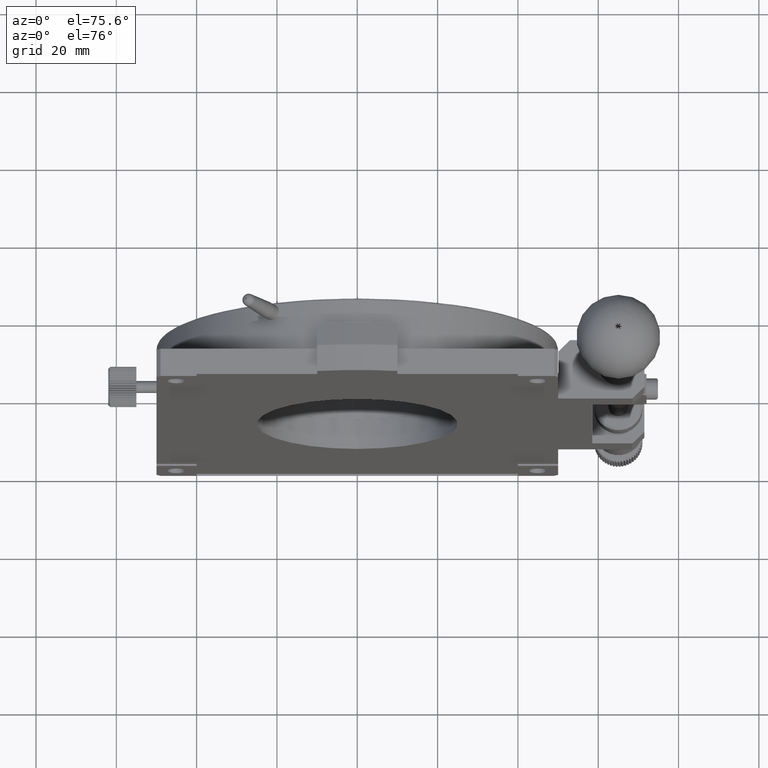
[diagram: clean part render]
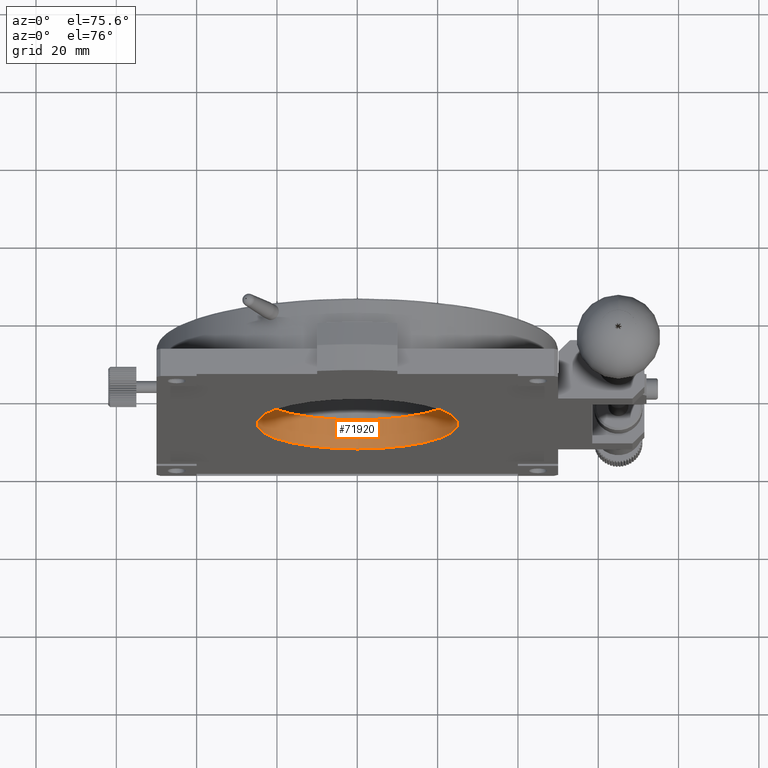
[diagram: same view with one face highlighted and labeled with its STEP entity id]
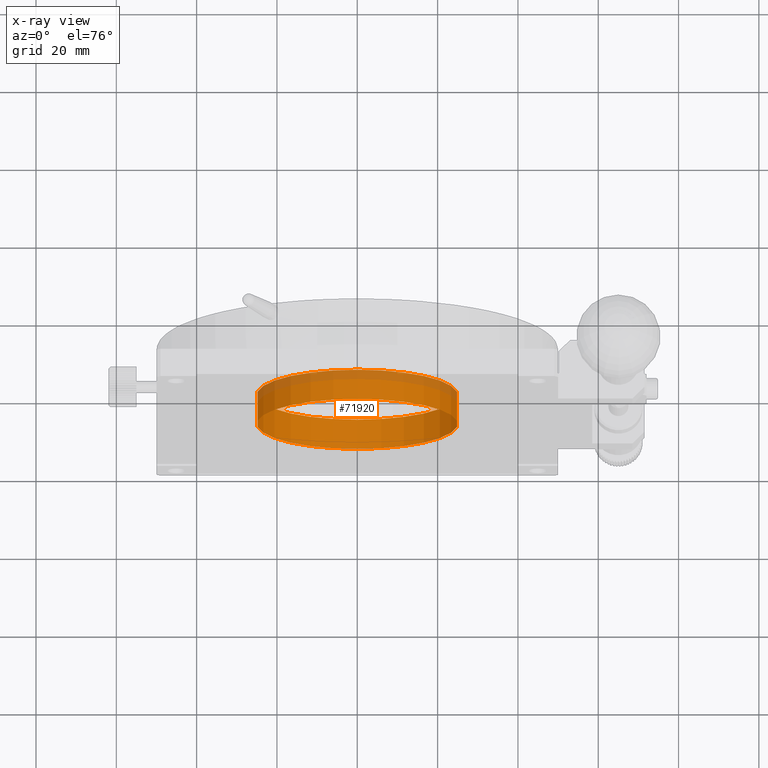
[diagram: x-ray of the same camera — body ghosted, the highlighted face saturated]
A machine part, auxiliary view. The second image highlights one B-rep face of the part: STEP entity #71920.
The next image is the same camera in x-ray: the body ghosted, the highlighted face saturated — about 17% of this face is hidden behind the body in this view.
In plain terms, the highlighted cylindrical surface (bore or boss wall) has radius 25 mm, axis along (0, -1, 0).
Its self-contained STEP definition (entity closure, byte-faithful):
#1 = AXIS2_PLACEMENT_3D ( 'NONE', #41757, #72481, #5682 ) ;
#5390 = AXIS2_PLACEMENT_3D ( 'NONE', #77266, #61226, #54854 ) ;
#5682 = DIRECTION ( 'NONE',  ( 0.000000000000000000, 0.000000000000000000, -1.000000000000000000 ) ) ;
#6869 = ORIENTED_EDGE ( 'NONE', *, *, #8420, .F. ) ;
#8420 = EDGE_CURVE ( 'NONE', #51460, #51460, #31158, .T. ) ;
#12080 = EDGE_CURVE ( 'NONE', #43632, #43632, #90480, .T. ) ;
#25566 = CYLINDRICAL_SURFACE ( 'NONE', #5390, 25.00000000000000000 ) ;
#25711 = DIRECTION ( 'NONE',  ( 0.000000000000000000, 0.000000000000000000, -1.000000000000000000 ) ) ;
#29489 = CARTESIAN_POINT ( 'NONE',  ( 0.000000000000000000, 0.5000000000000004441, -25.00000000000000000 ) ) ;
#31158 = CIRCLE ( 'NONE', #1, 25.00000000000000000 ) ;
#34320 = AXIS2_PLACEMENT_3D ( 'NONE', #62332, #39885, #25711 ) ;
#39885 = DIRECTION ( 'NONE',  ( 0.000000000000000000, -1.000000000000000000, 0.000000000000000000 ) ) ;
#40677 = FACE_OUTER_BOUND ( 'NONE', #54553, .T. ) ;
#41757 = CARTESIAN_POINT ( 'NONE',  ( 0.000000000000000000, 8.000000000000000000, 0.000000000000000000 ) ) ;
#43141 = CARTESIAN_POINT ( 'NONE',  ( 0.000000000000000000, 8.000000000000000000, -25.00000000000000000 ) ) ;
#43632 = VERTEX_POINT ( 'NONE', #29489 ) ;
#47545 = FACE_OUTER_BOUND ( 'NONE', #96219, .T. ) ;
#51460 = VERTEX_POINT ( 'NONE', #43141 ) ;
#54553 = EDGE_LOOP ( 'NONE', ( #86905 ) ) ;
#54854 = DIRECTION ( 'NONE',  ( 0.000000000000000000, 0.000000000000000000, -1.000000000000000000 ) ) ;
#61226 = DIRECTION ( 'NONE',  ( 0.000000000000000000, -1.000000000000000000, 0.000000000000000000 ) ) ;
#62332 = CARTESIAN_POINT ( 'NONE',  ( 0.000000000000000000, 0.5000000000000004441, 0.000000000000000000 ) ) ;
#71920 = ADVANCED_FACE ( 'NONE', ( #47545, #40677 ), #25566, .F. ) ;
#72481 = DIRECTION ( 'NONE',  ( 0.000000000000000000, -1.000000000000000000, 0.000000000000000000 ) ) ;
#77266 = CARTESIAN_POINT ( 'NONE',  ( 0.000000000000000000, 20.00000000000000000, 0.000000000000000000 ) ) ;
#86905 = ORIENTED_EDGE ( 'NONE', *, *, #12080, .T. ) ;
#90480 = CIRCLE ( 'NONE', #34320, 25.00000000000000000 ) ;
#96219 = EDGE_LOOP ( 'NONE', ( #6869 ) ) ;